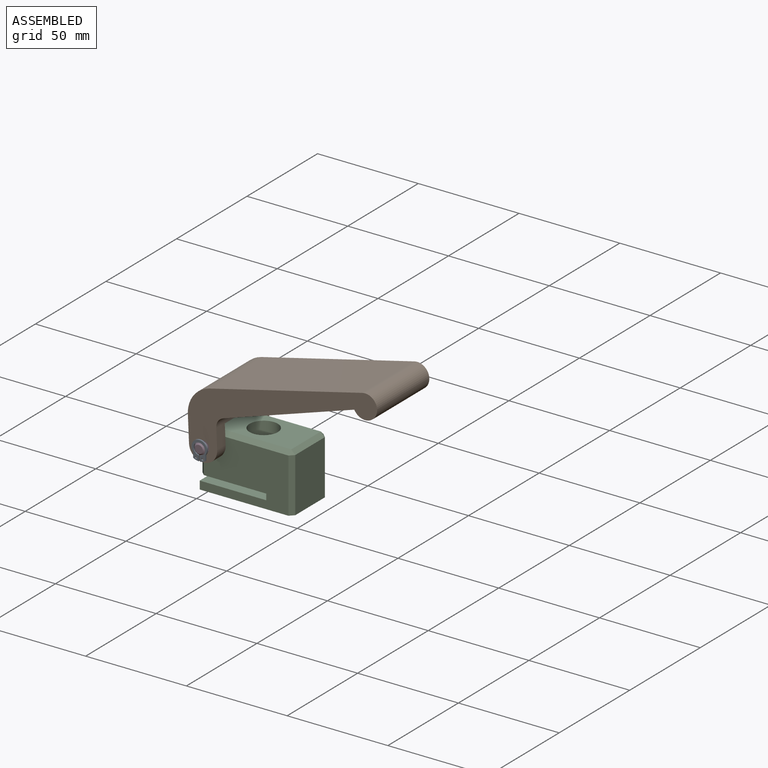
[diagram: assembled view]
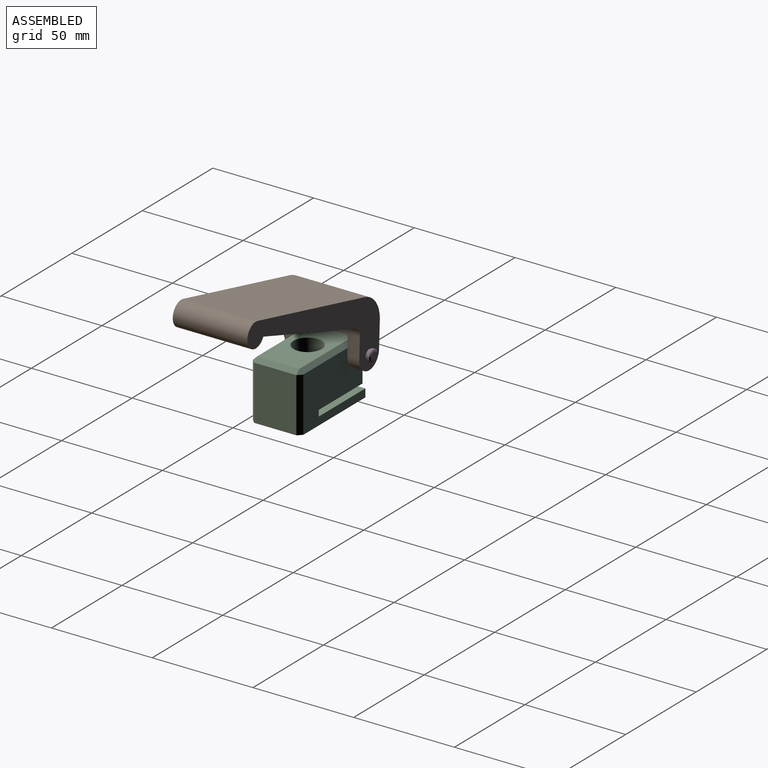
[diagram: assembled view, second angle]
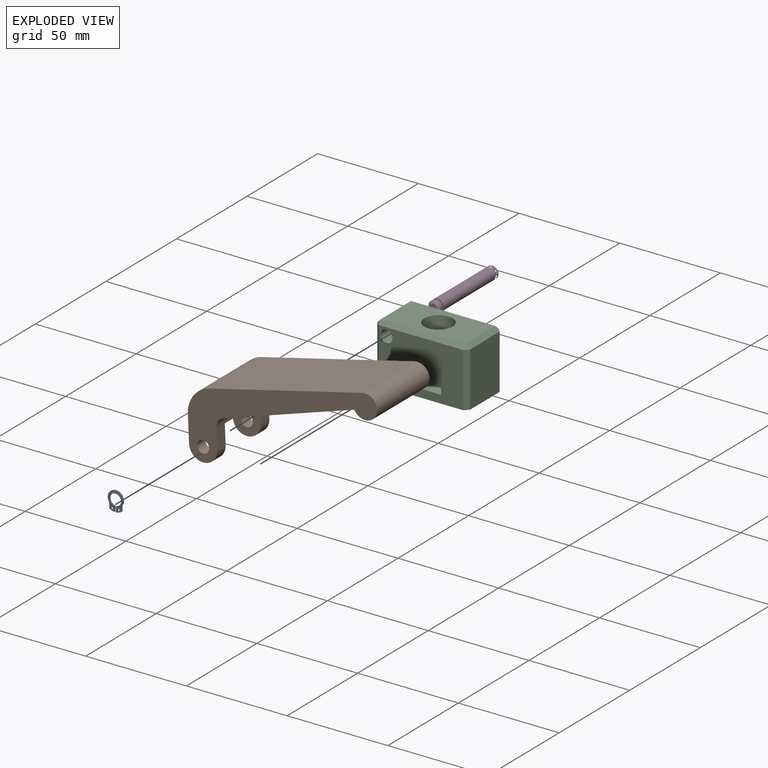
[diagram: exploded view]
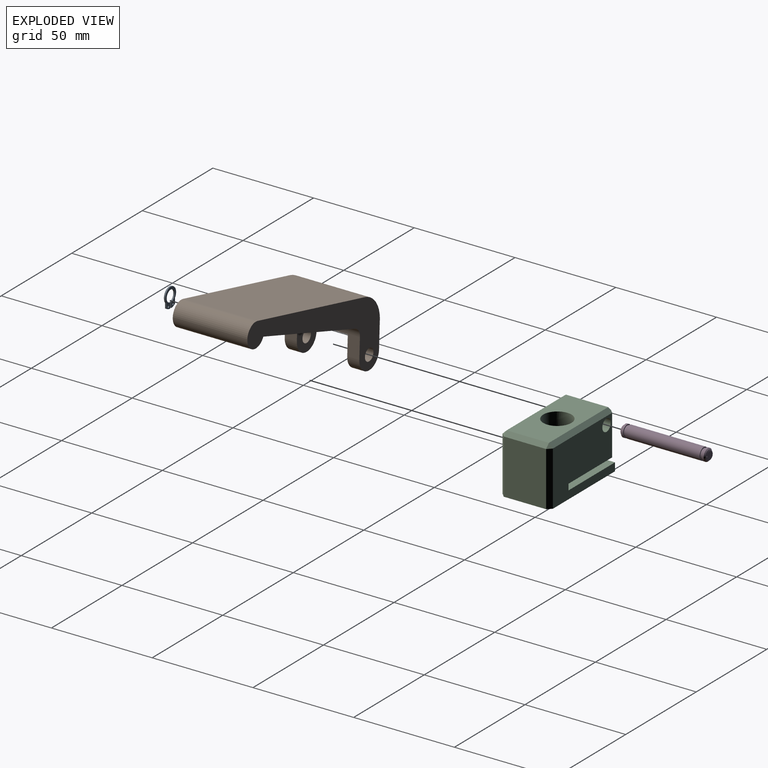
[diagram: exploded view, second angle]
ASSEMBLY  parts=4 mates=3
PART A: 12 faces, bbox 7.7x0.7x9.7 mm
  f0: plane 2.71x0.7mm, normal (1,0,0), area 1.9mm2, adj f1,f7,f8,f9
  f1: cylinder r=2.85mm len=5.7mm, axis (0,1,0), area 12mm2, adj f0,f2,f8,f9
  f2: plane 2.71x0.7mm, normal (-1,0,0), area 1.9mm2, adj f1,f3,f8,f9
  f3: cylinder r=5.55mm len=2.7mm, axis (0,1,0), area 2mm2, adj f2,f4,f8,f9
  f4: plane 2.65x0.7mm, normal (1,0,0), area 1.9mm2, adj f3,f5,f8,f9
  f5: cylinder r=3.82mm len=7.65mm, axis (0,1,0), area 11.9mm2, adj f4,f6,f8,f9
  f6: plane 2.65x0.7mm, normal (-1,0,0), area 1.9mm2, adj f5,f7,f8,f9
  f7: cylinder r=5.55mm len=2.7mm, axis (0,1,0), area 2mm2, adj f0,f6,f8,f9
  f8: plane 9.69x7.65mm, normal (0,-1,0), area 30.2mm2, adj f0,f1,f2,f3,f4,f5,f6,f7
  f9: plane 9.69x7.65mm, normal (0,1,0), area 30.2mm2, adj f0,f1,f2,f3,f4,f5,f6,f7
  f10: cylinder r=0.55mm len=1.1mm, axis (0,-1,0), area 2.4mm2, adj f8,f9
  f11: cylinder r=0.55mm len=1.1mm, axis (0,-1,0), area 2.4mm2, adj f8,f9
PART B: 16 faces, bbox 95.1x37x49.2 mm
  f0: cylinder r=3mm len=6mm, axis (0,1,0), area 113.1mm2, adj f1,f3
  f1: plane 16.84x14mm, normal (0,-1,0), area 184.6mm2, adj f0,f2,f4,f6,f8
  f2: cylinder r=7mm len=14mm, axis (0,-1,0), area 131.9mm2, adj f1,f3,f6,f8
  f3: plane 95.1x49.22mm, normal (0,1,0), area 1231.8mm2, adj f0,f2,f5,f6,f8,f9,f10,f11
  f4: plane 25x14mm, normal (0,0,-1), area 350mm2, adj f1,f6,f8,f13
  f5: cylinder r=14mm len=37mm, axis (0,-1,0), area 713.2mm2, adj f3,f6,f12,f14
  f6: plane 37x13.11mm, normal (-1,0,0), area 242.3mm2, adj f1,f2,f3,f4,f5,f7,f13,f14
  f7: cylinder r=7mm len=14mm, axis (0,-1,0), area 131.9mm2, adj f6,f8,f13,f14
  f8: plane 37x10.19mm, normal (1,0,0), area 134.3mm2, adj f1,f2,f3,f4,f7,f9,f13,f14
  f9: cylinder r=5mm len=37mm, axis (0,-1,0), area 240mm2, adj f3,f8,f10,f14
  f10: plane 65.9x37mm, normal (0.27,0,-0.96), area 2532.4mm2, adj f3,f9,f11,f14
  f11: cylinder r=6mm len=37mm, axis (0,-1,0), area 993.4mm2, adj f3,f10,f12,f14
  f12: plane 76.54x37mm, normal (-0.19,0,0.98), area 2886.2mm2, adj f3,f5,f11,f14
  f13: plane 16.84x14mm, normal (0,1,0), area 184.6mm2, adj f4,f6,f7,f8,f15
  f14: plane 95.1x49.22mm, normal (0,-1,0), area 1231.8mm2, adj f5,f6,f7,f8,f9,f10,f11,f12
  f15: cylinder r=3mm len=6mm, axis (0,1,0), area 113.1mm2, adj f13,f14
PART C: 30 faces, bbox 46x25x29 mm
  f0: cone r=1.03mm half-angle=59deg, axis (0,0,-1), area 15.7mm2, adj f7
  f1: plane 20x2mm, normal (-0.71,-0.71,0), area 56.6mm2, adj f4,f5,f6,f10
  f2: cylinder r=4mm len=14mm, axis (0,0,-1), area 351.9mm2, adj f3,f10
  f3: plane 14.26x14mm, normal (0,0,1), area 103.7mm2, adj f2,f17
  f4: plane 21x20mm, normal (-1,0,0), area 420mm2, adj f1,f10,f15,f18
  f5: plane 2x2mm, normal (-0.58,-0.58,0.58), area 3.5mm2, adj f1,f18,f19
  f6: plane 44x27mm, normal (0,-1,0), area 1020.7mm2, adj f1,f10,f11,f12,f13,f14,f16,f19
  f7: cylinder r=2.07mm len=12mm, axis (0,0,1), area 155.8mm2, adj f0,f20
  f8: cylinder r=2.07mm len=4.13mm, axis (0,0,1), area 51.9mm2, adj f12,f20
  f9: cylinder r=4mm len=8mm, axis (0,0,-1), area 100.5mm2, adj f12,f20
  f10: plane 33x25mm, normal (0,0,-1), area 770.7mm2, adj f1,f2,f4,f6,f11,f15,f21
  f11: plane 25x3mm, normal (-1,0,0), area 75mm2, adj f6,f10,f12,f21
  f12: plane 33x25mm, normal (0,0,1), area 761.3mm2, adj f6,f8,f9,f11,f13,f21
  f13: plane 25x4mm, normal (-1,0,0), area 100mm2, adj f6,f12,f20,f21
  f14: cylinder r=3mm len=25mm, axis (0,1,0), area 471.2mm2, adj f6,f21
  f15: plane 20x2mm, normal (-0.71,0.71,0), area 56.6mm2, adj f4,f10,f21,f22
  f16: plane 27x2mm, normal (0.71,-0.71,0), area 76.4mm2, adj f6,f20,f23,f24
  f17: cylinder r=7mm len=14mm, axis (0,0,-1), area 351.9mm2, adj f3,f25
  f18: plane 21x2mm, normal (-0.71,0,0.71), area 59.4mm2, adj f4,f5,f22,f25
  f19: plane 42x2mm, normal (0,-0.71,0.71), area 118.8mm2, adj f5,f6,f23,f25
  f20: plane 46x25mm, normal (0,0,-1), area 1068.9mm2, adj f6,f7,f8,f9,f13,f16,f21,f24
  f21: plane 44x27mm, normal (0,1,0), area 1020.7mm2, adj f10,f11,f12,f13,f14,f15,f20,f26
  f22: plane 2x2mm, normal (-0.58,0.58,0.58), area 3.5mm2, adj f15,f18,f27
  f23: plane 2x2mm, normal (0.58,-0.58,0.58), area 3.5mm2, adj f16,f19,f28
  f24: plane 27x21mm, normal (1,0,0), area 567mm2, adj f16,f20,f26,f28
  f25: plane 42x21mm, normal (0,0,1), area 728.1mm2, adj f17,f18,f19,f27,f28
  f26: plane 27x2mm, normal (0.71,0.71,0), area 76.4mm2, adj f20,f21,f24,f29
  f27: plane 42x2mm, normal (0,0.71,0.71), area 118.8mm2, adj f21,f22,f25,f29
  f28: plane 21x2mm, normal (0.71,0,0.71), area 59.4mm2, adj f23,f24,f25,f29
  f29: plane 2x2mm, normal (0.58,0.58,0.58), area 3.5mm2, adj f26,f27,f28
PART D: 13 faces, bbox 43x6.1x6 mm
  f0: plane 4.07x4mm, normal (-1,0,0), area 9.9mm2, adj f1
  f1: cone r=2.5mm half-angle=45deg, axis (1,0,0), area 22.2mm2, adj f0,f2
  f2: cylinder r=3mm len=6mm, axis (1,0,0), area 18.8mm2, adj f1,f3
  f3: plane 6.11x6mm, normal (1,0,0), area 15.7mm2, adj f2,f4
  f4: cylinder r=2.5mm len=5mm, axis (1,0,0), area 15.7mm2, adj f3,f5
  f5: plane 6.11x6mm, normal (-1,0,0), area 8.6mm2, adj f4,f6
  f6: cylinder r=3mm len=37mm, axis (1,0,0), area 697.4mm2, adj f5,f7
  f7: plane 6.11x6mm, normal (1,0,0), area 8.6mm2, adj f6,f8
  f8: cylinder r=2.5mm len=5mm, axis (1,0,0), area 15.7mm2, adj f7,f9
  f9: plane 6.11x6mm, normal (-1,0,0), area 8.6mm2, adj f8,f11
  f10: plane 4.07x4mm, normal (1,0,0), area 12.6mm2, adj f12
  f11: cylinder r=3mm len=6mm, axis (1,0,0), area 18.8mm2, adj f9,f12
  f12: cone r=2.5mm half-angle=45deg, axis (-1,0,0), area 22.2mm2, adj f10,f11
PLACE A t=(4.07,-53.37,-8.84)mm
PLACE B rot(axis=(0,-1,0),2.5deg) t=(4.24,-14.37,-6.15)mm
PLACE C t=(-1.63,-20.37,-29.14)mm fixed
PLACE D rot(axis=(0.58,-0.58,-0.58),120deg) t=(4.24,-11.37,-6.15)mm
MATE revolute B.f1 <-> C.f21  axis (0,-1,0) through (4.37,-20.37,-9.14)mm
MATE revolute D.f1 <-> B.f0  axis (0,-1,0) through (4.24,-51.37,-6.15)mm
MATE planar A.f1 <-> D.f1  axis (0,1,0) through (4.24,-53.37,-6.15)mm
